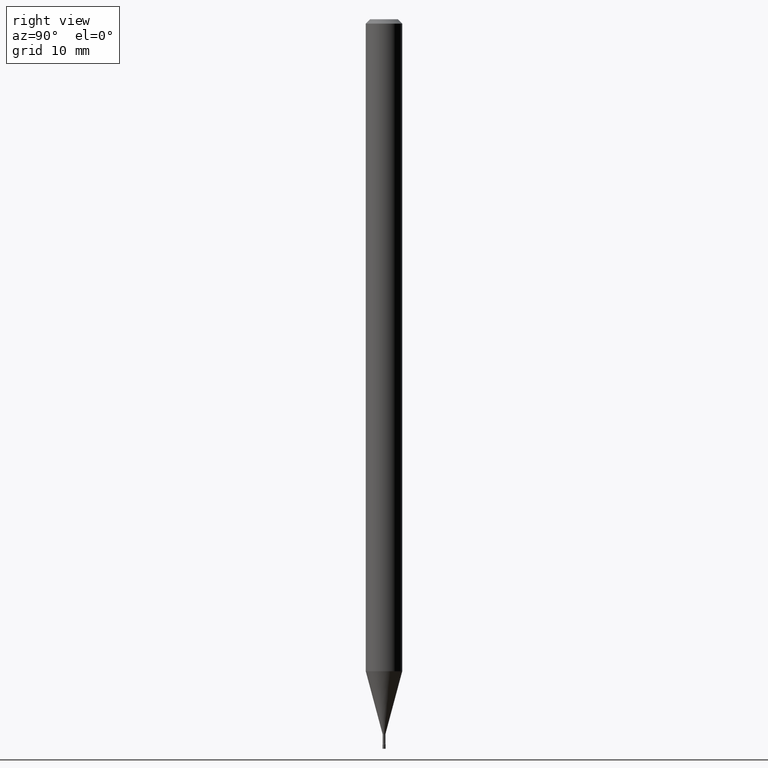
[diagram: clean part render]
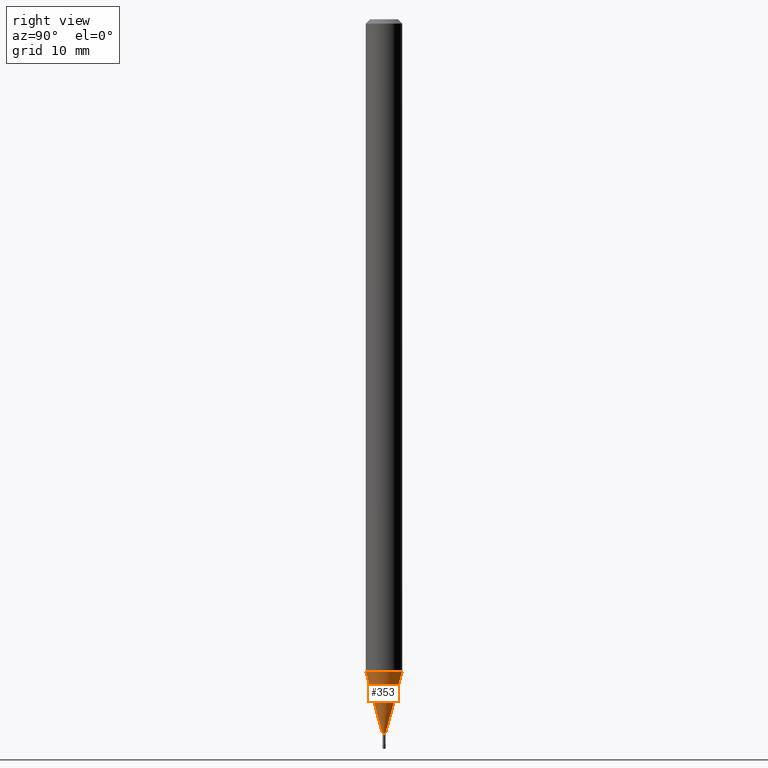
[diagram: same view with one face highlighted and labeled with its STEP entity id]
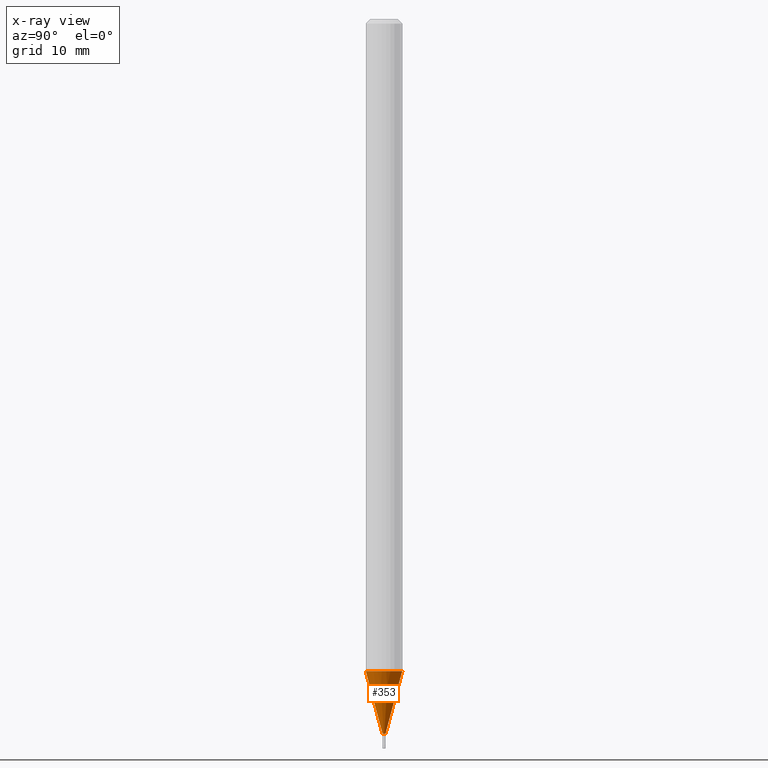
[diagram: x-ray of the same camera — body ghosted, the highlighted face saturated]
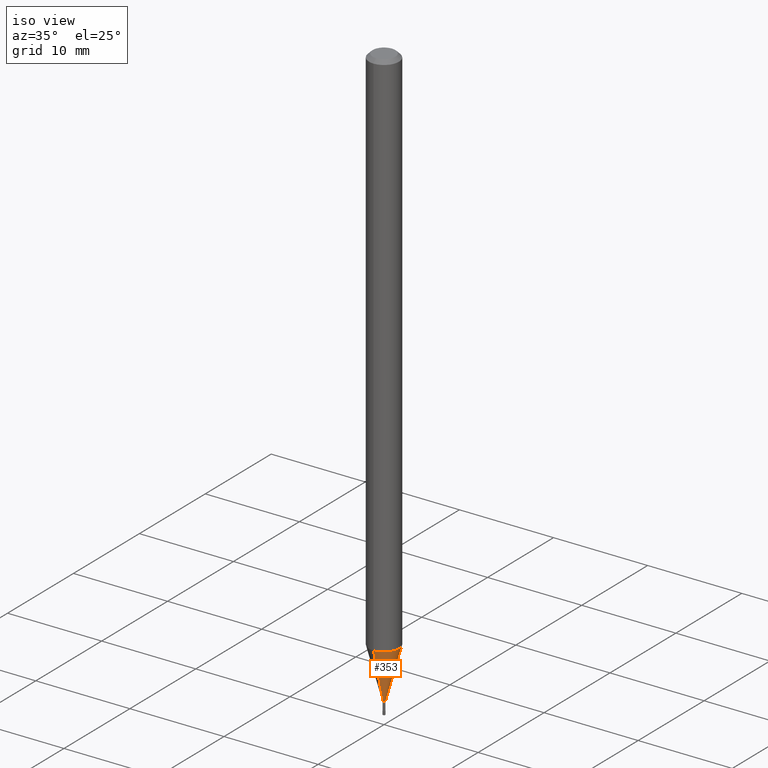
[diagram: same view with one face highlighted and labeled with its STEP entity id]
A machine part, right view. The second image highlights one B-rep face of the part: STEP entity #353.
The next image is the same camera in x-ray: the body ghosted, the highlighted face saturated — about 0% of this face is hidden behind the body in this view.
A second angle (iso view) of the same face is appended — the face is thin or edge-on in the first view.
In plain terms, the highlighted conical surface has half-angle 15 deg.
Its self-contained STEP definition (entity closure, byte-faithful):
#7 = AXIS2_PLACEMENT_3D ( 'NONE', #427, #432, #97 ) ;
#11 = DIRECTION ( 'NONE',  ( -6.982962677686265922E-15, -1.000000000000000000, 0.000000000000000000 ) ) ;
#21 = ORIENTED_EDGE ( 'NONE', *, *, #462, .F. ) ;
#27 = ORIENTED_EDGE ( 'NONE', *, *, #48, .T. ) ;
#46 = CIRCLE ( 'NONE', #169, 0.06250000000000000000 ) ;
#48 = EDGE_CURVE ( 'NONE', #67, #277, #450, .T. ) ;
#67 = VERTEX_POINT ( 'NONE', #415 ) ;
#80 = CARTESIAN_POINT ( 'NONE',  ( -4.364351673553370408E-16, -0.06250000000000781319, -2.234287463322518708 ) ) ;
#83 = LINE ( 'NONE', #517, #413 ) ;
#97 = DIRECTION ( 'NONE',  ( -6.982962677686265922E-15, -1.000000000000000000, 0.000000000000000000 ) ) ;
#169 = AXIS2_PLACEMENT_3D ( 'NONE', #365, #484, #363 ) ;
#253 = LINE ( 'NONE', #309, #273 ) ;
#258 = FACE_OUTER_BOUND ( 'NONE', #280, .T. ) ;
#273 = VECTOR ( 'NONE', #343, 39.37007874015748143 ) ;
#277 = VERTEX_POINT ( 'NONE', #500 ) ;
#280 = EDGE_LOOP ( 'NONE', ( #27, #311, #463, #21 ) ) ;
#309 = CARTESIAN_POINT ( 'NONE',  ( 3.702718207188414804E-17, 0.005211112605655433307, -2.448092501787273001 ) ) ;
#311 = ORIENTED_EDGE ( 'NONE', *, *, #372, .T. ) ;
#328 = DIRECTION ( 'NONE',  ( -1.807323732225326195E-15, -0.2588190451025176309, 0.9659258262890690894 ) ) ;
#333 = CARTESIAN_POINT ( 'NONE',  ( 5.988491702082905110E-29, -8.544951938334478549E-15, -2.448092501787273001 ) ) ;
#343 = DIRECTION ( 'NONE',  ( 1.839019923739596371E-15, 0.2588190451025244032, 0.9659258262890673130 ) ) ;
#347 = CARTESIAN_POINT ( 'NONE',  ( 4.440892098501171462E-16, 0.06249999999999218681, -2.234287463322519596 ) ) ;
#353 = ADVANCED_FACE ( 'NONE', ( #258 ), #392, .T. ) ;
#363 = DIRECTION ( 'NONE',  ( -6.982962677686265922E-15, -1.000000000000000000, 4.370956789862821150E-15 ) ) ;
#365 = CARTESIAN_POINT ( 'NONE',  ( 5.465484627074530748E-29, -7.798675489825575723E-15, -2.234287463322519152 ) ) ;
#370 = DIRECTION ( 'NONE',  ( -2.446186856791931682E-29, 3.490453049505312812E-15, 1.000000000000000000 ) ) ;
#372 = EDGE_CURVE ( 'NONE', #277, #429, #253, .T. ) ;
#392 = CONICAL_SURFACE ( 'NONE', #7, 0.005211112605663977687, 0.2617993877991496854 ) ;
#413 = VECTOR ( 'NONE', #328, 39.37007874015748854 ) ;
#415 = CARTESIAN_POINT ( 'NONE',  ( -3.638900483451209847E-17, -0.005211112605672522068, -2.448092501787273001 ) ) ;
#427 = CARTESIAN_POINT ( 'NONE',  ( 5.988491702082905110E-29, -8.544951938334478549E-15, -2.448092501787273001 ) ) ;
#429 = VERTEX_POINT ( 'NONE', #347 ) ;
#432 = DIRECTION ( 'NONE',  ( -2.446186856791931682E-29, 3.490453049505312812E-15, 1.000000000000000000 ) ) ;
#450 = CIRCLE ( 'NONE', #486, 0.005211112605663977687 ) ;
#462 = EDGE_CURVE ( 'NONE', #67, #518, #83, .T. ) ;
#463 = ORIENTED_EDGE ( 'NONE', *, *, #489, .F. ) ;
#484 = DIRECTION ( 'NONE',  ( -2.446186856791931682E-29, 3.490453049505312812E-15, 1.000000000000000000 ) ) ;
#486 = AXIS2_PLACEMENT_3D ( 'NONE', #333, #370, #11 ) ;
#489 = EDGE_CURVE ( 'NONE', #518, #429, #46, .T. ) ;
#500 = CARTESIAN_POINT ( 'NONE',  ( 2.405581959610008443E-16, 0.005211112605655433307, -2.448092501787273001 ) ) ;
#517 = CARTESIAN_POINT ( 'NONE',  ( -3.638900483451209847E-17, -0.005211112605672522068, -2.448092501787273001 ) ) ;
#518 = VERTEX_POINT ( 'NONE', #80 ) ;